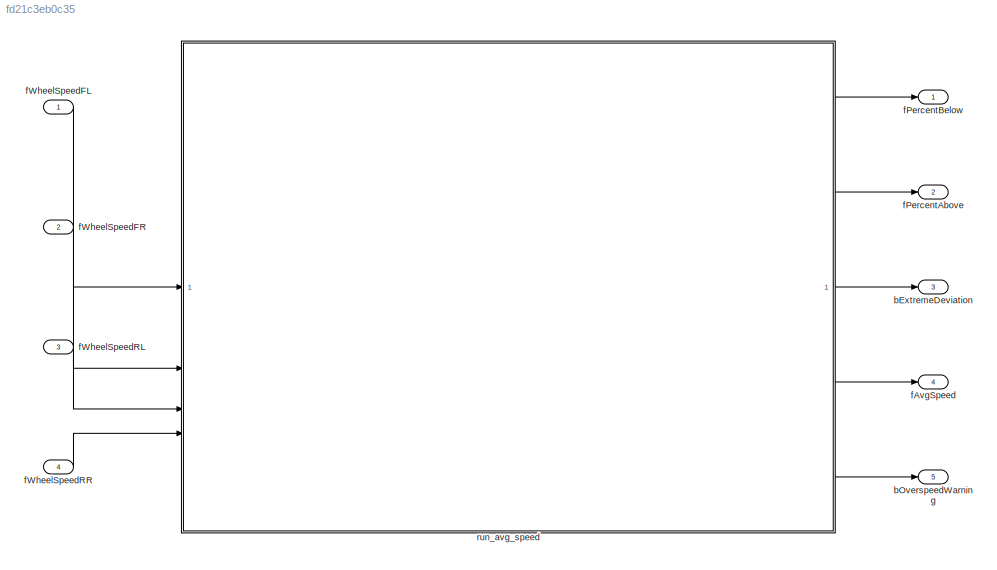
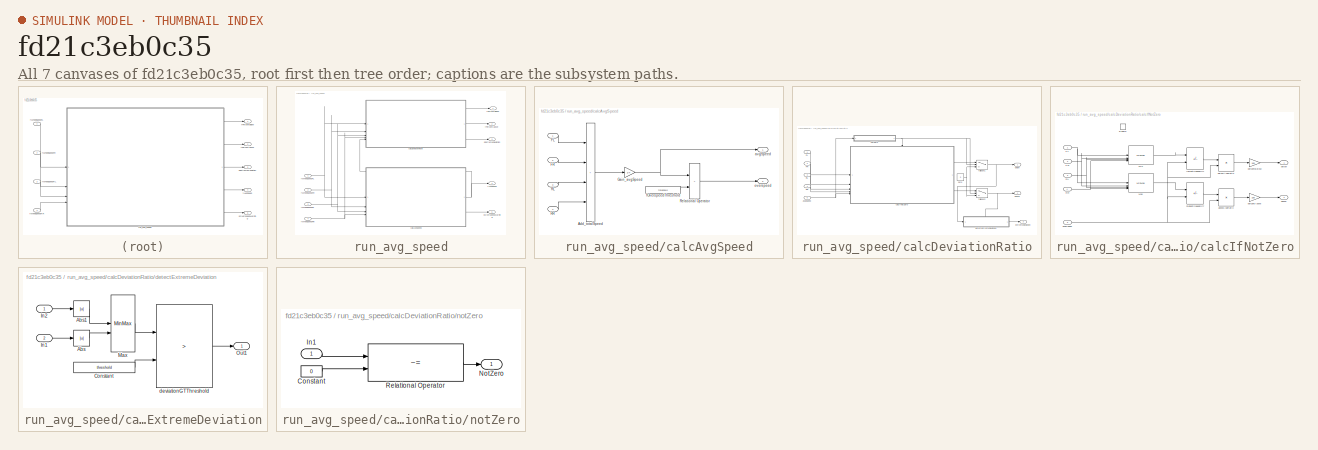
[diagram: thumbnail index - all 7 canvases of the model, root first then tree order]
MODEL slx_fd21c3eb0c35
KIND model
CONFIG AbsTol = auto
CONFIG EnableMultiTasking = off
CONFIG FixedStep = 0.01
CONFIG MaxStep = auto
CONFIG MinStep = auto
CONFIG RelTol = 1e-3
CONFIG SampleTimeConstraint = Unconstrained
CONFIG SolverName = FixedStepDiscrete
CONFIG StartTime = 0.0
CONFIG StopTime = 10.0
WORKSPACE source: mxarray member
WORKSPACE threshold: Simulink.Parameter (value not decoded)
BLOCK [Outport] bExtremeDeviation
  Port = 3
BLOCK [Outport] bOverspeedWarning
  Port = 5
BLOCK [Outport] fAvgSpeed
  Port = 4
BLOCK [Outport] fPercentAbove
  Port = 2
BLOCK [Outport] fPercentBelow
BLOCK [Inport] fWheelSpeedFL
BLOCK [Inport] fWheelSpeedFR
  Port = 2
BLOCK [Inport] fWheelSpeedRL
  Port = 3
BLOCK [Inport] fWheelSpeedRR
  Port = 4
BLOCK [SubSystem] run_avg_speed
  TreatAsAtomicUnit = on
BLOCK [Outport] run_avg_speed/bExtremeDeviation
  Port = 3
BLOCK [Outport] run_avg_speed/bOverspeedWarning
  Port = 5
BLOCK [SubSystem] run_avg_speed/calcAvgSpeed
  TreatAsAtomicUnit = on
BLOCK [Sum] run_avg_speed/calcAvgSpeed/Add_totalSpeed
  IconShape = rectangular
  Inputs = ++++
BLOCK [Inport] run_avg_speed/calcAvgSpeed/FL
BLOCK [Inport] run_avg_speed/calcAvgSpeed/FR
  Port = 2
BLOCK [Gain] run_avg_speed/calcAvgSpeed/Gain_avgSpeed
  Gain = 1/4
BLOCK [Inport] run_avg_speed/calcAvgSpeed/RL
  Port = 3
BLOCK [Inport] run_avg_speed/calcAvgSpeed/RR
  Port = 4
BLOCK [RelationalOperator] run_avg_speed/calcAvgSpeed/Relational Operator
  InputSameDT = off
  Operator = >
  OutDataTypeStr = boolean
  RndMeth = Simplest
BLOCK [Outport] run_avg_speed/calcAvgSpeed/avgSpeed
BLOCK [Constant] run_avg_speed/calcAvgSpeed/fOverspeedThreshold
  Value = threshold
BLOCK [Outport] run_avg_speed/calcAvgSpeed/overspeed
  Port = 2
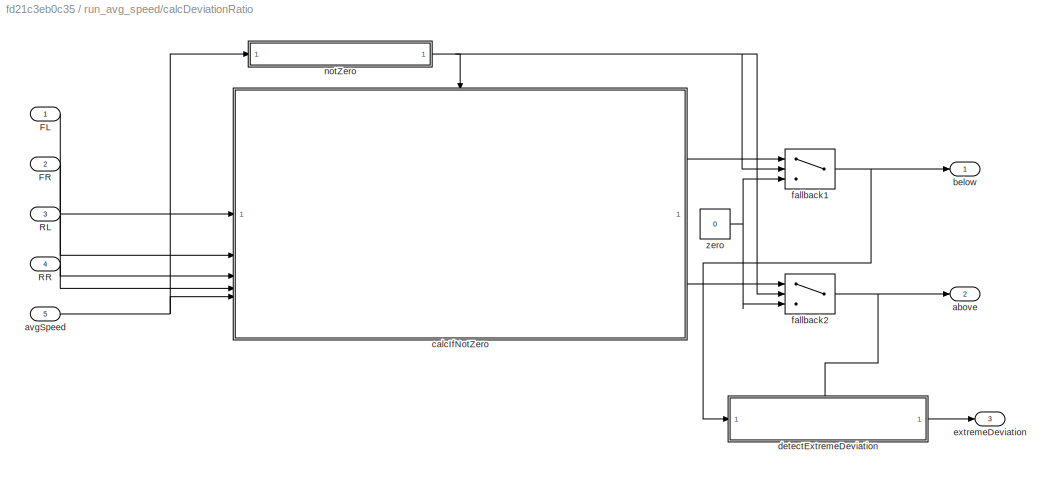
BLOCK [SubSystem] run_avg_speed/calcDeviationRatio
  TreatAsAtomicUnit = on
BLOCK [Inport] run_avg_speed/calcDeviationRatio/FL
BLOCK [Inport] run_avg_speed/calcDeviationRatio/FR
  Port = 2
BLOCK [Inport] run_avg_speed/calcDeviationRatio/RL
  Port = 3
BLOCK [Inport] run_avg_speed/calcDeviationRatio/RR
  Port = 4
BLOCK [Outport] run_avg_speed/calcDeviationRatio/above
  Port = 2
BLOCK [Inport] run_avg_speed/calcDeviationRatio/avgSpeed
  Port = 5
BLOCK [Outport] run_avg_speed/calcDeviationRatio/below
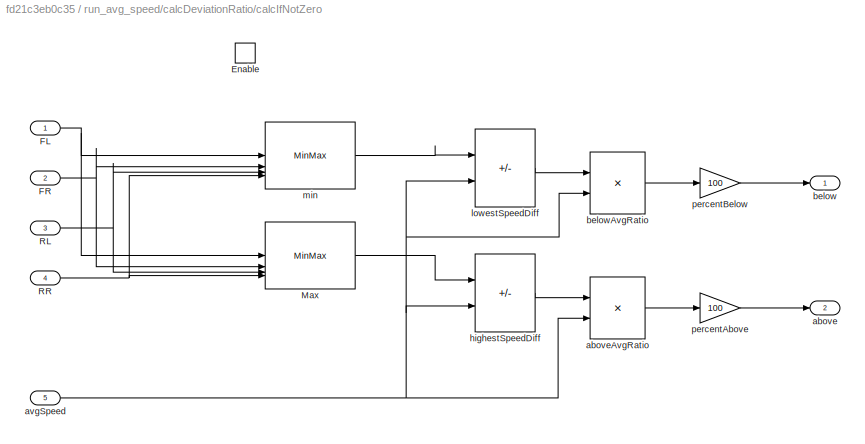
BLOCK [SubSystem] run_avg_speed/calcDeviationRatio/calcIfNotZero
  RTWFcnNameOpts = Use subsystem name
  RTWSystemCode = Nonreusable function
BLOCK [EnablePort] run_avg_speed/calcDeviationRatio/calcIfNotZero/Enable
BLOCK [Inport] run_avg_speed/calcDeviationRatio/calcIfNotZero/FL
BLOCK [Inport] run_avg_speed/calcDeviationRatio/calcIfNotZero/FR
  Port = 2
BLOCK [MinMax] run_avg_speed/calcDeviationRatio/calcIfNotZero/Max
  Function = max
  Inputs = 4
BLOCK [Inport] run_avg_speed/calcDeviationRatio/calcIfNotZero/RL
  Port = 3
BLOCK [Inport] run_avg_speed/calcDeviationRatio/calcIfNotZero/RR
  Port = 4
BLOCK [Outport] run_avg_speed/calcDeviationRatio/calcIfNotZero/above
  Port = 2
BLOCK [Product] run_avg_speed/calcDeviationRatio/calcIfNotZero/aboveAvgRatio
  Inputs = */
BLOCK [Inport] run_avg_speed/calcDeviationRatio/calcIfNotZero/avgSpeed
  Port = 5
BLOCK [Outport] run_avg_speed/calcDeviationRatio/calcIfNotZero/below
BLOCK [Product] run_avg_speed/calcDeviationRatio/calcIfNotZero/belowAvgRatio
  Inputs = */
BLOCK [Sum] run_avg_speed/calcDeviationRatio/calcIfNotZero/highestSpeedDiff
  IconShape = rectangular
  Inputs = +-
BLOCK [Sum] run_avg_speed/calcDeviationRatio/calcIfNotZero/lowestSpeedDiff
  IconShape = rectangular
  Inputs = +-
BLOCK [MinMax] run_avg_speed/calcDeviationRatio/calcIfNotZero/min
  Inputs = 4
BLOCK [Gain] run_avg_speed/calcDeviationRatio/calcIfNotZero/percentAbove
  Gain = 100
BLOCK [Gain] run_avg_speed/calcDeviationRatio/calcIfNotZero/percentBelow
  Gain = 100
BLOCK [SubSystem] run_avg_speed/calcDeviationRatio/detectExtremeDeviation
  PortSchema = {"entries":[{"content":{"sides":[{"content":{"connectorIds":["In1"]},"type":"ConnectorPlacement.EquallySpacedRectSide","uuid":"583db5ef-c387-4867-871e-9235f7e32af7"},{"content":{"connectorIds":["Out1"],"side":"RIGHT"},"type":"ConnectorPlacement.EquallySpacedRectSide","uuid":"84949f04-6f07-4642-b15e-054c50b68494"},{"content":{"connectorIds":["In2"],"side":"TOP"},"type":"ConnectorPlacement.EquallySp...<+245ch>
BLOCK [Abs] run_avg_speed/calcDeviationRatio/detectExtremeDeviation/Abs
  SaturateOnIntegerOverflow = off
BLOCK [Abs] run_avg_speed/calcDeviationRatio/detectExtremeDeviation/Abs1
  SaturateOnIntegerOverflow = off
BLOCK [Constant] run_avg_speed/calcDeviationRatio/detectExtremeDeviation/Constant
  Value = threshold
BLOCK [Inport] run_avg_speed/calcDeviationRatio/detectExtremeDeviation/In1
  Port = 2
BLOCK [Inport] run_avg_speed/calcDeviationRatio/detectExtremeDeviation/In2
BLOCK [MinMax] run_avg_speed/calcDeviationRatio/detectExtremeDeviation/Max
  Function = max
  Inputs = 2
BLOCK [Outport] run_avg_speed/calcDeviationRatio/detectExtremeDeviation/Out1
BLOCK [RelationalOperator] run_avg_speed/calcDeviationRatio/detectExtremeDeviation/deviationGTThreshold
  InputSameDT = off
  Operator = >
  OutDataTypeStr = boolean
  RndMeth = Simplest
BLOCK [Outport] run_avg_speed/calcDeviationRatio/extremeDeviation
  Port = 3
BLOCK [Switch] run_avg_speed/calcDeviationRatio/fallback1
  Criteria = u2 > Threshold
  InputSameDT = off
  SaturateOnIntegerOverflow = off
BLOCK [Switch] run_avg_speed/calcDeviationRatio/fallback2
  Criteria = u2 > Threshold
  InputSameDT = off
  SaturateOnIntegerOverflow = off
BLOCK [SubSystem] run_avg_speed/calcDeviationRatio/notZero
BLOCK [Constant] run_avg_speed/calcDeviationRatio/notZero/Constant
  Value = 0
BLOCK [Inport] run_avg_speed/calcDeviationRatio/notZero/In1
BLOCK [Outport] run_avg_speed/calcDeviationRatio/notZero/NotZero
BLOCK [RelationalOperator] run_avg_speed/calcDeviationRatio/notZero/Relational Operator
  InputSameDT = off
  Operator = ~=
  OutDataTypeStr = boolean
  RndMeth = Simplest
BLOCK [Constant] run_avg_speed/calcDeviationRatio/zero
  Value = 0
BLOCK [Outport] run_avg_speed/fAvgSpeed
  Port = 4
BLOCK [Outport] run_avg_speed/fPercentAbove
  Port = 2
BLOCK [Outport] run_avg_speed/fPercentBelow
BLOCK [Inport] run_avg_speed/fWheelSpeedFL
BLOCK [Inport] run_avg_speed/fWheelSpeedFR
  Port = 2
BLOCK [Inport] run_avg_speed/fWheelSpeedRL
  Port = 3
BLOCK [Inport] run_avg_speed/fWheelSpeedRR
  Port = 4
LINE fWheelSpeedFL:1 -> run_avg_speed:1
LINE fWheelSpeedFR:1 -> run_avg_speed:2
LINE fWheelSpeedRL:1 -> run_avg_speed:3
LINE fWheelSpeedRR:1 -> run_avg_speed:4
LINE run_avg_speed/calcAvgSpeed/Add_totalSpeed:1 -> run_avg_speed/calcAvgSpeed/Gain_avgSpeed:1
LINE run_avg_speed/calcAvgSpeed/FL:1 -> run_avg_speed/calcAvgSpeed/Add_totalSpeed:1
LINE run_avg_speed/calcAvgSpeed/FR:1 -> run_avg_speed/calcAvgSpeed/Add_totalSpeed:2
NET run_avg_speed/calcAvgSpeed/Gain_avgSpeed:1 -> run_avg_speed/calcAvgSpeed/Relational Operator:1, run_avg_speed/calcAvgSpeed/avgSpeed:1
LINE run_avg_speed/calcAvgSpeed/RL:1 -> run_avg_speed/calcAvgSpeed/Add_totalSpeed:3
LINE run_avg_speed/calcAvgSpeed/RR:1 -> run_avg_speed/calcAvgSpeed/Add_totalSpeed:4
LINE run_avg_speed/calcAvgSpeed/Relational Operator:1 -> run_avg_speed/calcAvgSpeed/overspeed:1
LINE run_avg_speed/calcAvgSpeed/fOverspeedThreshold:1 -> run_avg_speed/calcAvgSpeed/Relational Operator:2
NET run_avg_speed/calcAvgSpeed:1 -> run_avg_speed/calcDeviationRatio:5, run_avg_speed/fAvgSpeed:1
LINE run_avg_speed/calcAvgSpeed:2 -> run_avg_speed/bOverspeedWarning:1
LINE run_avg_speed/calcDeviationRatio/FL:1 -> run_avg_speed/calcDeviationRatio/calcIfNotZero:1
LINE run_avg_speed/calcDeviationRatio/FR:1 -> run_avg_speed/calcDeviationRatio/calcIfNotZero:2
LINE run_avg_speed/calcDeviationRatio/RL:1 -> run_avg_speed/calcDeviationRatio/calcIfNotZero:3
LINE run_avg_speed/calcDeviationRatio/RR:1 -> run_avg_speed/calcDeviationRatio/calcIfNotZero:4
NET run_avg_speed/calcDeviationRatio/avgSpeed:1 -> run_avg_speed/calcDeviationRatio/calcIfNotZero:5, run_avg_speed/calcDeviationRatio/notZero:1
NET run_avg_speed/calcDeviationRatio/calcIfNotZero/FL:1 -> run_avg_speed/calcDeviationRatio/calcIfNotZero/Max:1, run_avg_speed/calcDeviationRatio/calcIfNotZero/min:1
NET run_avg_speed/calcDeviationRatio/calcIfNotZero/FR:1 -> run_avg_speed/calcDeviationRatio/calcIfNotZero/Max:2, run_avg_speed/calcDeviationRatio/calcIfNotZero/min:2
LINE run_avg_speed/calcDeviationRatio/calcIfNotZero/Max:1 -> run_avg_speed/calcDeviationRatio/calcIfNotZero/highestSpeedDiff:1
NET run_avg_speed/calcDeviationRatio/calcIfNotZero/RL:1 -> run_avg_speed/calcDeviationRatio/calcIfNotZero/Max:3, run_avg_speed/calcDeviationRatio/calcIfNotZero/min:3
NET run_avg_speed/calcDeviationRatio/calcIfNotZero/RR:1 -> run_avg_speed/calcDeviationRatio/calcIfNotZero/Max:4, run_avg_speed/calcDeviationRatio/calcIfNotZero/min:4
LINE run_avg_speed/calcDeviationRatio/calcIfNotZero/aboveAvgRatio:1 -> run_avg_speed/calcDeviationRatio/calcIfNotZero/percentAbove:1
NET run_avg_speed/calcDeviationRatio/calcIfNotZero/avgSpeed:1 -> run_avg_speed/calcDeviationRatio/calcIfNotZero/aboveAvgRatio:2, run_avg_speed/calcDeviationRatio/calcIfNotZero/belowAvgRatio:2, run_avg_speed/calcDeviationRatio/calcIfNotZero/highestSpeedDiff:2, run_avg_speed/calcDeviationRatio/calcIfNotZero/lowestSpeedDiff:2
LINE run_avg_speed/calcDeviationRatio/calcIfNotZero/belowAvgRatio:1 -> run_avg_speed/calcDeviationRatio/calcIfNotZero/percentBelow:1
LINE run_avg_speed/calcDeviationRatio/calcIfNotZero/highestSpeedDiff:1 -> run_avg_speed/calcDeviationRatio/calcIfNotZero/aboveAvgRatio:1
LINE run_avg_speed/calcDeviationRatio/calcIfNotZero/lowestSpeedDiff:1 -> run_avg_speed/calcDeviationRatio/calcIfNotZero/belowAvgRatio:1
LINE run_avg_speed/calcDeviationRatio/calcIfNotZero/min:1 -> run_avg_speed/calcDeviationRatio/calcIfNotZero/lowestSpeedDiff:1
LINE run_avg_speed/calcDeviationRatio/calcIfNotZero/percentAbove:1 -> run_avg_speed/calcDeviationRatio/calcIfNotZero/above:1
LINE run_avg_speed/calcDeviationRatio/calcIfNotZero/percentBelow:1 -> run_avg_speed/calcDeviationRatio/calcIfNotZero/below:1
LINE run_avg_speed/calcDeviationRatio/calcIfNotZero:1 -> run_avg_speed/calcDeviationRatio/fallback1:1
LINE run_avg_speed/calcDeviationRatio/calcIfNotZero:2 -> run_avg_speed/calcDeviationRatio/fallback2:1
LINE run_avg_speed/calcDeviationRatio/detectExtremeDeviation/Abs1:1 -> run_avg_speed/calcDeviationRatio/detectExtremeDeviation/Max:1
LINE run_avg_speed/calcDeviationRatio/detectExtremeDeviation/Abs:1 -> run_avg_speed/calcDeviationRatio/detectExtremeDeviation/Max:2
LINE run_avg_speed/calcDeviationRatio/detectExtremeDeviation/Constant:1 -> run_avg_speed/calcDeviationRatio/detectExtremeDeviation/deviationGTThreshold:2
LINE run_avg_speed/calcDeviationRatio/detectExtremeDeviation/In1:1 -> run_avg_speed/calcDeviationRatio/detectExtremeDeviation/Abs:1
LINE run_avg_speed/calcDeviationRatio/detectExtremeDeviation/In2:1 -> run_avg_speed/calcDeviationRatio/detectExtremeDeviation/Abs1:1
LINE run_avg_speed/calcDeviationRatio/detectExtremeDeviation/Max:1 -> run_avg_speed/calcDeviationRatio/detectExtremeDeviation/deviationGTThreshold:1
LINE run_avg_speed/calcDeviationRatio/detectExtremeDeviation/deviationGTThreshold:1 -> run_avg_speed/calcDeviationRatio/detectExtremeDeviation/Out1:1
LINE run_avg_speed/calcDeviationRatio/detectExtremeDeviation:1 -> run_avg_speed/calcDeviationRatio/extremeDeviation:1
NET run_avg_speed/calcDeviationRatio/fallback1:1 -> run_avg_speed/calcDeviationRatio/below:1, run_avg_speed/calcDeviationRatio/detectExtremeDeviation:1
NET run_avg_speed/calcDeviationRatio/fallback2:1 -> run_avg_speed/calcDeviationRatio/above:1, run_avg_speed/calcDeviationRatio/detectExtremeDeviation:2
LINE run_avg_speed/calcDeviationRatio/notZero/Constant:1 -> run_avg_speed/calcDeviationRatio/notZero/Relational Operator:2
LINE run_avg_speed/calcDeviationRatio/notZero/In1:1 -> run_avg_speed/calcDeviationRatio/notZero/Relational Operator:1
LINE run_avg_speed/calcDeviationRatio/notZero/Relational Operator:1 -> run_avg_speed/calcDeviationRatio/notZero/NotZero:1
NET run_avg_speed/calcDeviationRatio/notZero:1 -> run_avg_speed/calcDeviationRatio/calcIfNotZero:enable, run_avg_speed/calcDeviationRatio/fallback1:2, run_avg_speed/calcDeviationRatio/fallback2:2
NET run_avg_speed/calcDeviationRatio/zero:1 -> run_avg_speed/calcDeviationRatio/fallback1:3, run_avg_speed/calcDeviationRatio/fallback2:3
LINE run_avg_speed/calcDeviationRatio:1 -> run_avg_speed/fPercentBelow:1
LINE run_avg_speed/calcDeviationRatio:2 -> run_avg_speed/fPercentAbove:1
LINE run_avg_speed/calcDeviationRatio:3 -> run_avg_speed/bExtremeDeviation:1
NET run_avg_speed/fWheelSpeedFL:1 -> run_avg_speed/calcAvgSpeed:1, run_avg_speed/calcDeviationRatio:1
NET run_avg_speed/fWheelSpeedFR:1 -> run_avg_speed/calcAvgSpeed:2, run_avg_speed/calcDeviationRatio:2
NET run_avg_speed/fWheelSpeedRL:1 -> run_avg_speed/calcAvgSpeed:3, run_avg_speed/calcDeviationRatio:3
NET run_avg_speed/fWheelSpeedRR:1 -> run_avg_speed/calcAvgSpeed:4, run_avg_speed/calcDeviationRatio:4
LINE run_avg_speed:1 -> fPercentBelow:1
LINE run_avg_speed:2 -> fPercentAbove:1
LINE run_avg_speed:3 -> bExtremeDeviation:1
LINE run_avg_speed:4 -> fAvgSpeed:1
LINE run_avg_speed:5 -> bOverspeedWarning:1
note: NET lines group one-source signal fan-out (src -> all destinations, sorted); 1:1 wires keep LINE
